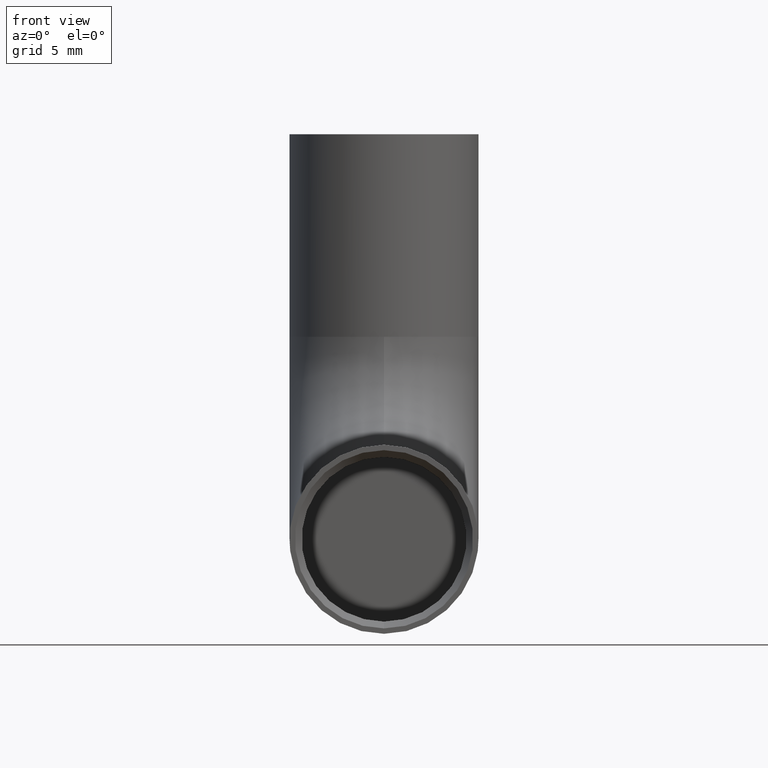
[diagram: clean part render]
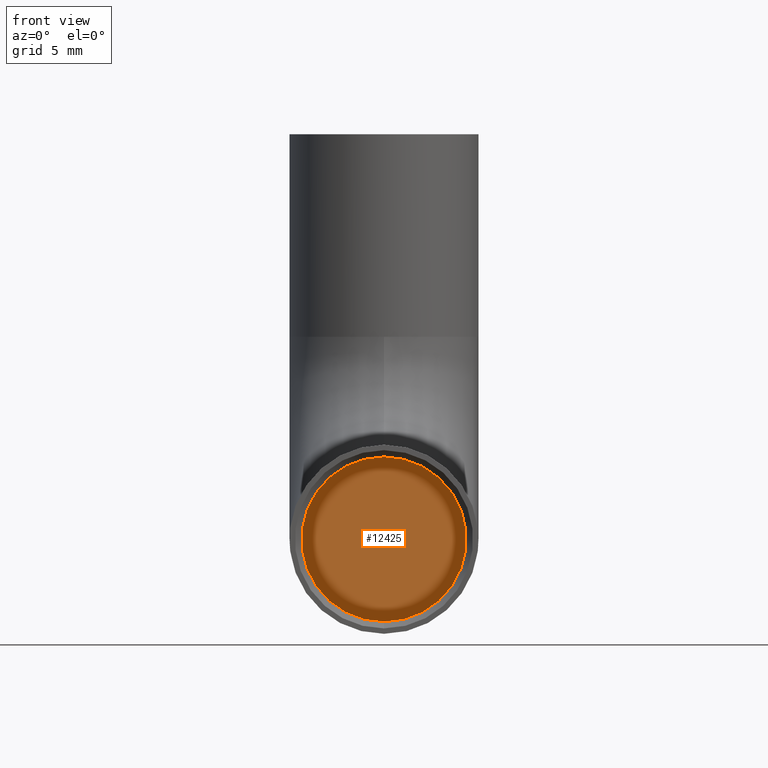
[diagram: same view with one face highlighted and labeled with its STEP entity id]
A machine part, front view. The second image highlights one B-rep face of the part: STEP entity #12425.
In plain terms, the highlighted planar face has unit normal (0, -1, 0).
Its self-contained STEP definition (entity closure, byte-faithful):
#302 = AXIS2_PLACEMENT_3D ( 'NONE', #12379, #7259, #9383 ) ;
#759 = PLANE ( 'NONE',  #10422 ) ;
#1852 = AXIS2_PLACEMENT_3D ( 'NONE', #7897, #9875, #9922 ) ;
#1860 = CARTESIAN_POINT ( 'NONE',  ( 0.000000000000000000, 15.00000000000000000, -6.099999999999999645 ) ) ;
#2777 = EDGE_CURVE ( 'NONE', #3170, #7989, #12916, .T. ) ;
#2914 = EDGE_CURVE ( 'NONE', #7989, #3170, #12099, .T. ) ;
#3170 = VERTEX_POINT ( 'NONE', #1860 ) ;
#3588 = CARTESIAN_POINT ( 'NONE',  ( 7.470345474798854293E-16, 15.00000000000000000, 6.099999999999999645 ) ) ;
#5764 = DIRECTION ( 'NONE',  ( 0.000000000000000000, -1.000000000000000000, 0.000000000000000000 ) ) ;
#6779 = DIRECTION ( 'NONE',  ( 0.000000000000000000, -0.000000000000000000, -1.000000000000000000 ) ) ;
#7259 = DIRECTION ( 'NONE',  ( 0.000000000000000000, -1.000000000000000000, 0.000000000000000000 ) ) ;
#7897 = CARTESIAN_POINT ( 'NONE',  ( 0.000000000000000000, 15.00000000000000000, 0.000000000000000000 ) ) ;
#7989 = VERTEX_POINT ( 'NONE', #3588 ) ;
#8475 = FACE_OUTER_BOUND ( 'NONE', #8938, .T. ) ;
#8938 = EDGE_LOOP ( 'NONE', ( #9709, #12550 ) ) ;
#9383 = DIRECTION ( 'NONE',  ( 0.000000000000000000, 0.000000000000000000, -1.000000000000000000 ) ) ;
#9709 = ORIENTED_EDGE ( 'NONE', *, *, #2777, .T. ) ;
#9875 = DIRECTION ( 'NONE',  ( 0.000000000000000000, -1.000000000000000000, 0.000000000000000000 ) ) ;
#9922 = DIRECTION ( 'NONE',  ( 0.000000000000000000, 0.000000000000000000, -1.000000000000000000 ) ) ;
#10422 = AXIS2_PLACEMENT_3D ( 'NONE', #11812, #5764, #6779 ) ;
#11812 = CARTESIAN_POINT ( 'NONE',  ( 0.000000000000000000, 15.00000000000000000, 0.000000000000000000 ) ) ;
#12099 = CIRCLE ( 'NONE', #302, 6.099999999999999645 ) ;
#12379 = CARTESIAN_POINT ( 'NONE',  ( 0.000000000000000000, 15.00000000000000000, 0.000000000000000000 ) ) ;
#12425 = ADVANCED_FACE ( 'NONE', ( #8475 ), #759, .T. ) ;
#12550 = ORIENTED_EDGE ( 'NONE', *, *, #2914, .T. ) ;
#12916 = CIRCLE ( 'NONE', #1852, 6.099999999999999645 ) ;